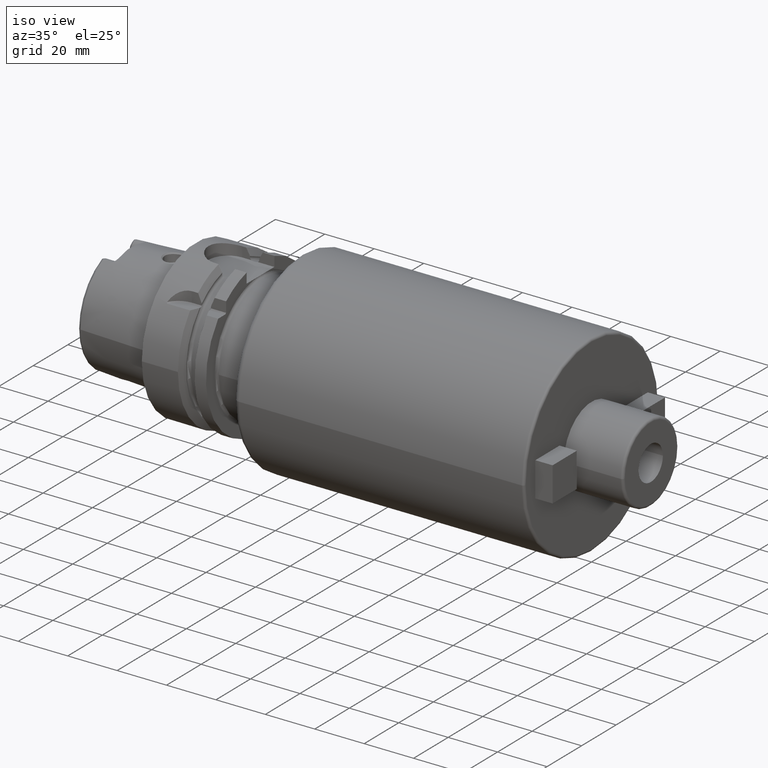
[diagram: clean part render]
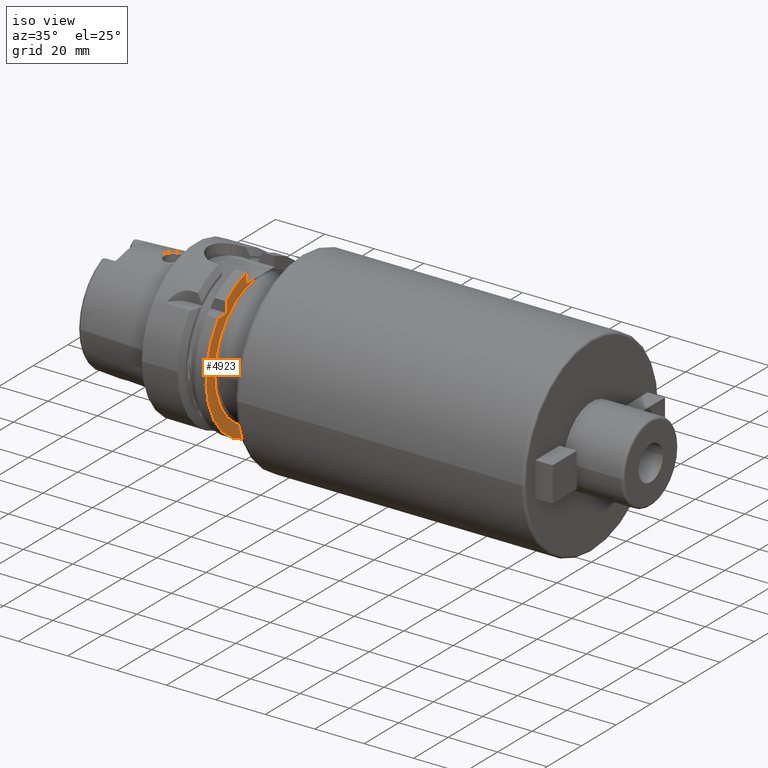
[diagram: same view with one face highlighted and labeled with its STEP entity id]
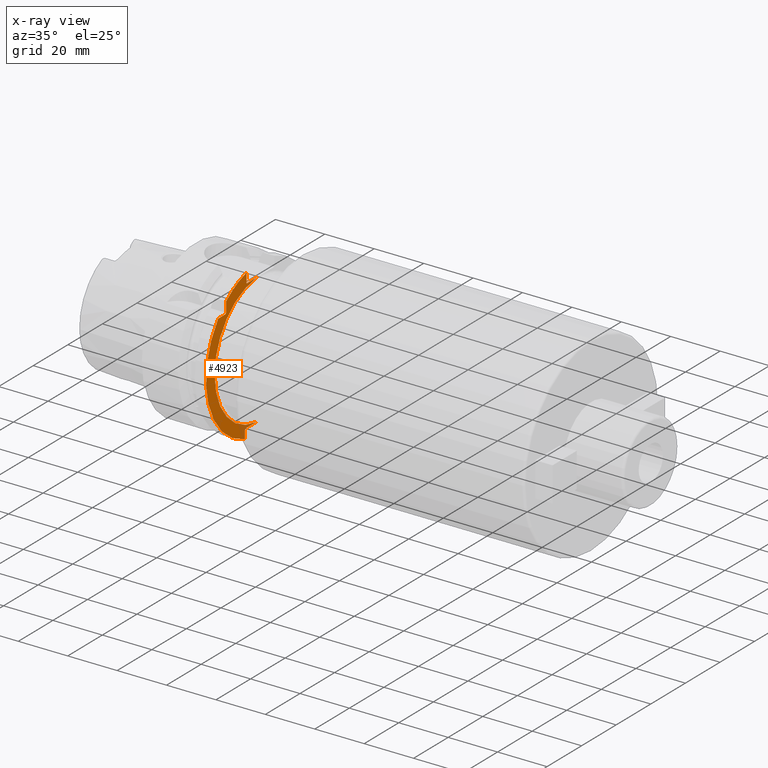
[diagram: x-ray of the same camera — body ghosted, the highlighted face saturated]
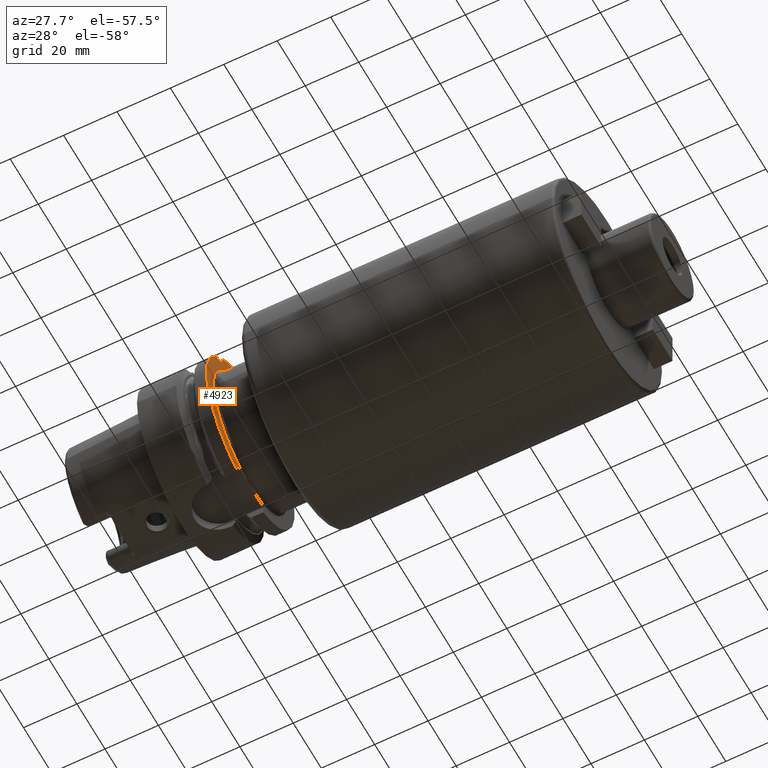
[diagram: same view with one face highlighted and labeled with its STEP entity id]
A machine part, iso view. The second image highlights one B-rep face of the part: STEP entity #4923.
The next image is the same camera in x-ray: the body ghosted, the highlighted face saturated — about 5% of this face is hidden behind the body in this view.
A second angle (auxiliary view) of the same face is appended — the face is thin or edge-on in the first view.
In plain terms, the highlighted planar face has unit normal (1, 0, 0).
Its self-contained STEP definition (entity closure, byte-faithful):
#1362=DIRECTION('',(0.E0,-9.999999999999E-1,-5.047950848360E-7));
#1363=VECTOR('',#1362,6.317478184910E0);
#1364=CARTESIAN_POINT('',(2.6E1,-2.300021815091E0,-2.639999681097E1));
#1365=LINE('',#1364,#1363);
#1405=DIRECTION('',(0.E0,9.999999999998E-1,-5.523994329360E-7));
#1406=VECTOR('',#1405,5.717478347499E0);
#1407=CARTESIAN_POINT('',(2.6E1,-8.0175E0,2.64E1));
#1408=LINE('',#1407,#1406);
#1451=CARTESIAN_POINT('',(2.6E1,0.E0,0.E0));
#1452=DIRECTION('',(-1.E0,0.E0,0.E0));
#1453=DIRECTION('',(0.E0,-8.679079126361E-2,-9.962265598506E-1));
#1454=AXIS2_PLACEMENT_3D('',#1451,#1452,#1453);
#1771=DIRECTION('',(0.E0,0.E0,1.E0));
#1772=VECTOR('',#1771,4.062594993697E0);
#1773=CARTESIAN_POINT('',(2.6E1,-8.0175E0,2.64E1));
#1774=LINE('',#1773,#1772);
#1876=CARTESIAN_POINT('',(2.6E1,0.E0,0.E0));
#1877=DIRECTION('',(1.E0,0.E0,0.E0));
#1878=DIRECTION('',(0.E0,-2.545238095238E-1,9.670665077364E-1));
#1879=AXIS2_PLACEMENT_3D('',#1876,#1877,#1878);
#1885=CARTESIAN_POINT('',(2.6E1,0.E0,0.E0));
#1886=DIRECTION('',(1.E0,0.E0,0.E0));
#1887=DIRECTION('',(0.E0,-7.764663384879E-1,6.301587301587E-1));
#1888=AXIS2_PLACEMENT_3D('',#1885,#1886,#1887);
#1991=DIRECTION('',(0.E0,0.E0,1.E0));
#1992=VECTOR('',#1991,4.208689662367E0);
#1993=CARTESIAN_POINT('',(2.6E1,-1.985E1,2.025E1));
#1994=LINE('',#1993,#1992);
#1995=DIRECTION('',(0.E0,-7.071067811865E-1,-7.071067811865E-1));
#1996=VECTOR('',#1995,5.656854249492E-1);
#1997=CARTESIAN_POINT('',(2.6E1,-1.985E1,2.025E1));
#1998=LINE('',#1997,#1996);
#2018=DIRECTION('',(0.E0,1.E0,0.E0));
#2019=VECTOR('',#2018,4.208689662367E0);
#2020=CARTESIAN_POINT('',(2.6E1,-2.445868966237E1,1.985E1));
#2021=LINE('',#2020,#2019);
#2281=DIRECTION('',(0.E0,0.E0,-1.E0));
#2282=VECTOR('',#2281,3.381694679888E0);
#2283=CARTESIAN_POINT('',(2.6E1,-9.0175E0,-2.68E1));
#2284=LINE('',#2283,#2282);
#2294=DIRECTION('',(0.E0,-7.071067811865E-1,-7.071067811866E-1));
#2295=VECTOR('',#2294,5.656854249492E-1);
#2296=CARTESIAN_POINT('',(2.6E1,-8.6175E0,-2.64E1));
#2297=LINE('',#2296,#2295);
#3325=CARTESIAN_POINT('',(2.6E1,-8.0175E0,2.64E1));
#3326=CARTESIAN_POINT('',(2.6E1,-8.0175E0,3.046259499370E1));
#3327=VERTEX_POINT('',#3325);
#3328=VERTEX_POINT('',#3326);
#3337=CARTESIAN_POINT('',(2.6E1,-9.0175E0,-2.68E1));
#3338=CARTESIAN_POINT('',(2.6E1,-9.0175E0,-3.018169467989E1));
#3339=VERTEX_POINT('',#3337);
#3340=VERTEX_POINT('',#3338);
#3341=CARTESIAN_POINT('',(2.6E1,-8.6175E0,-2.64E1));
#3342=VERTEX_POINT('',#3341);
#3357=CARTESIAN_POINT('',(2.6E1,-2.300021652502E0,2.639999684167E1));
#3358=VERTEX_POINT('',#3357);
#3363=CARTESIAN_POINT('',(2.6E1,-2.300021815091E0,-2.639999681097E1));
#3364=VERTEX_POINT('',#3363);
#3376=CARTESIAN_POINT('',(2.6E1,-1.985E1,2.445868966237E1));
#3377=VERTEX_POINT('',#3376);
#3378=CARTESIAN_POINT('',(2.6E1,-2.445868966237E1,1.985E1));
#3379=VERTEX_POINT('',#3378);
#3382=CARTESIAN_POINT('',(2.6E1,-2.025E1,1.985E1));
#3383=VERTEX_POINT('',#3382);
#3384=CARTESIAN_POINT('',(2.6E1,-1.985E1,2.025E1));
#3385=VERTEX_POINT('',#3384);
#4895=CARTESIAN_POINT('',(2.6E1,0.E0,0.E0));
#4896=DIRECTION('',(1.E0,0.E0,0.E0));
#4897=DIRECTION('',(0.E0,-1.E0,0.E0));
#4898=AXIS2_PLACEMENT_3D('',#4895,#4896,#4897);
#4899=PLANE('',#4898);
#4901=ORIENTED_EDGE('',*,*,#4900,.T.);
#4903=ORIENTED_EDGE('',*,*,#4902,.F.);
#4904=ORIENTED_EDGE('',*,*,#4869,.T.);
#4906=ORIENTED_EDGE('',*,*,#4905,.T.);
#4908=ORIENTED_EDGE('',*,*,#4907,.T.);
#4910=ORIENTED_EDGE('',*,*,#4909,.F.);
#4912=ORIENTED_EDGE('',*,*,#4911,.T.);
#4914=ORIENTED_EDGE('',*,*,#4913,.F.);
#4916=ORIENTED_EDGE('',*,*,#4915,.T.);
#4918=ORIENTED_EDGE('',*,*,#4917,.F.);
#4920=ORIENTED_EDGE('',*,*,#4919,.F.);
#4921=EDGE_LOOP('',(#4901,#4903,#4904,#4906,#4908,#4910,#4912,#4914,#4916,#4918,
#4920));
#4922=FACE_OUTER_BOUND('',#4921,.F.);
#4923=ADVANCED_FACE('',(#4922),#4899,.T.);
#1455=CIRCLE('',#1454,2.65E1);
#1880=CIRCLE('',#1879,3.15E1);
#1889=CIRCLE('',#1888,3.15E1);
#4869=EDGE_CURVE('',#3364,#3342,#1365,.T.);
#4900=EDGE_CURVE('',#3327,#3358,#1408,.T.);
#4902=EDGE_CURVE('',#3364,#3358,#1455,.T.);
#4905=EDGE_CURVE('',#3342,#3339,#2297,.T.);
#4907=EDGE_CURVE('',#3339,#3340,#2284,.T.);
#4909=EDGE_CURVE('',#3379,#3340,#1889,.T.);
#4911=EDGE_CURVE('',#3379,#3383,#2021,.T.);
#4913=EDGE_CURVE('',#3385,#3383,#1998,.T.);
#4915=EDGE_CURVE('',#3385,#3377,#1994,.T.);
#4917=EDGE_CURVE('',#3328,#3377,#1880,.T.);
#4919=EDGE_CURVE('',#3327,#3328,#1774,.T.);